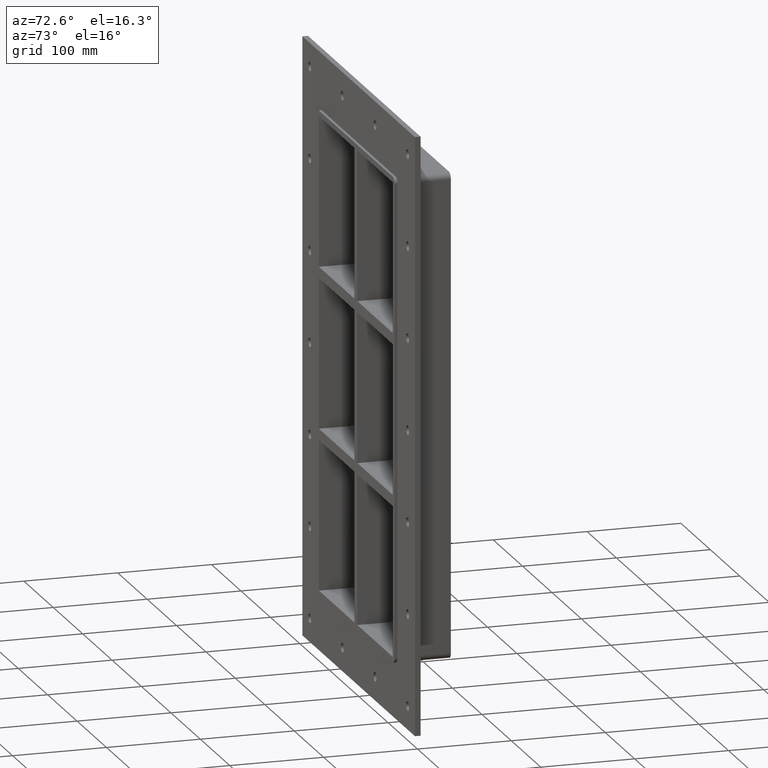
[diagram: clean part render]
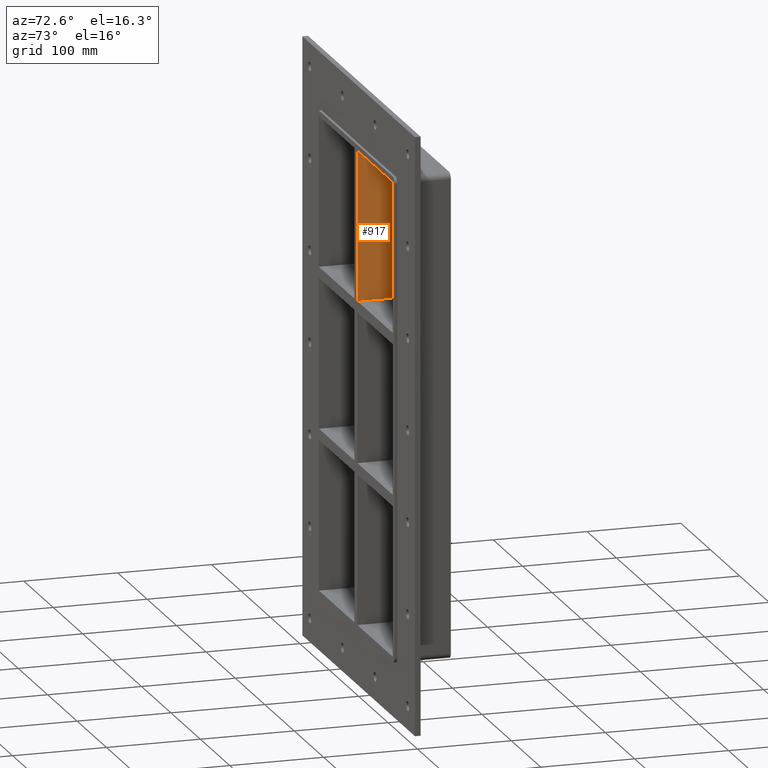
[diagram: same view with one face highlighted and labeled with its STEP entity id]
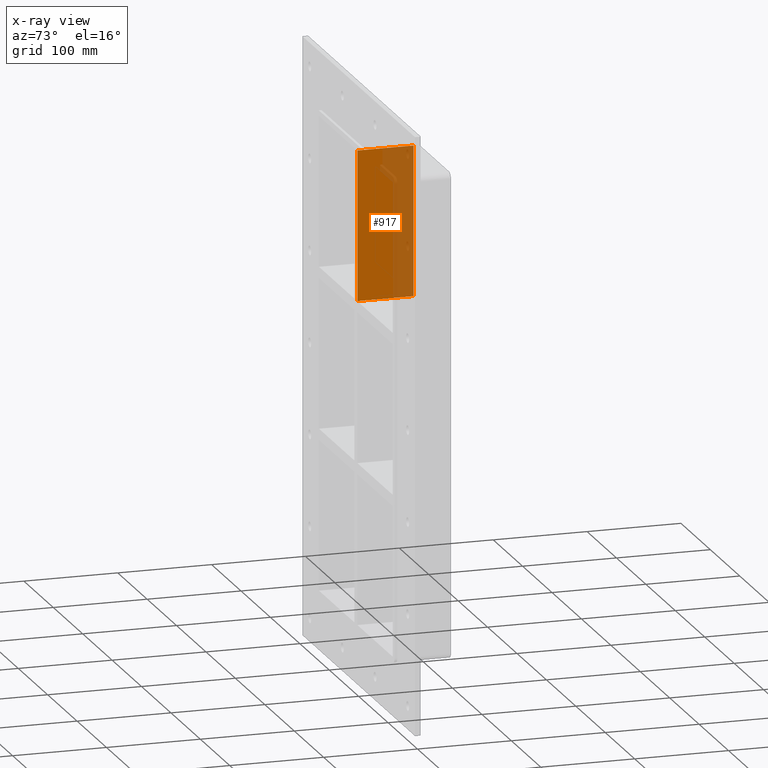
[diagram: x-ray of the same camera — body ghosted, the highlighted face saturated]
A machine part, auxiliary view. The second image highlights one B-rep face of the part: STEP entity #917.
The next image is the same camera in x-ray: the body ghosted, the highlighted face saturated — about 41% of this face is hidden behind the body in this view.
In plain terms, the highlighted planar face has unit normal (1, 0, 0).
Its self-contained STEP definition (entity closure, byte-faithful):
#617=CARTESIAN_POINT('',(5.0,-3.0,91.750000000000085));
#618=VERTEX_POINT('',#617);
#619=CARTESIAN_POINT('',(5.0,57.0,91.750000000000085));
#620=VERTEX_POINT('',#619);
#621=CARTESIAN_POINT('',(5.0,-3.0,91.750000000000085));
#622=DIRECTION('',(0.0,1.0,0.0));
#623=VECTOR('',#622,60.0);
#624=LINE('',#621,#623);
#625=EDGE_CURVE('',#618,#620,#624,.T.);
#887=CARTESIAN_POINT('',(5.0,-3.0,251.25000000000003));
#888=DIRECTION('',(1.0,0.0,0.0));
#889=DIRECTION('',(0.0,0.0,-1.0));
#890=AXIS2_PLACEMENT_3D('',#887,#888,#889);
#891=PLANE('',#890);
#892=ORIENTED_EDGE('',*,*,#625,.T.);
#893=CARTESIAN_POINT('',(5.0,57.0,251.25000000000003));
#894=VERTEX_POINT('',#893);
#895=CARTESIAN_POINT('',(5.0,57.0,251.25000000000003));
#896=DIRECTION('',(0.0,0.0,-1.0));
#897=VECTOR('',#896,159.49999999999994);
#898=LINE('',#895,#897);
#899=EDGE_CURVE('',#894,#620,#898,.T.);
#900=ORIENTED_EDGE('',*,*,#899,.F.);
#901=CARTESIAN_POINT('',(5.0,-3.0,251.25000000000003));
#902=VERTEX_POINT('',#901);
#903=CARTESIAN_POINT('',(5.0,-3.0,251.25000000000003));
#904=DIRECTION('',(0.0,1.0,0.0));
#905=VECTOR('',#904,60.000000000000007);
#906=LINE('',#903,#905);
#907=EDGE_CURVE('',#902,#894,#906,.T.);
#908=ORIENTED_EDGE('',*,*,#907,.F.);
#909=CARTESIAN_POINT('',(5.0,-3.0,251.25000000000003));
#910=DIRECTION('',(0.0,0.0,-1.0));
#911=VECTOR('',#910,159.49999999999994);
#912=LINE('',#909,#911);
#913=EDGE_CURVE('',#902,#618,#912,.T.);
#914=ORIENTED_EDGE('',*,*,#913,.T.);
#915=EDGE_LOOP('',(#892,#900,#908,#914));
#916=FACE_OUTER_BOUND('',#915,.T.);
#917=ADVANCED_FACE('',(#916),#891,.T.);